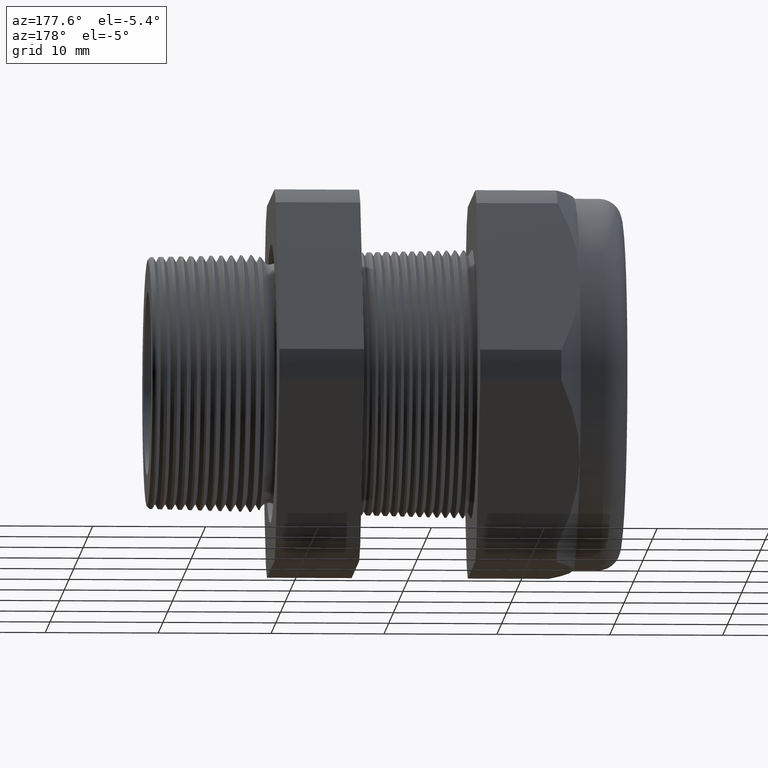
[diagram: clean part render]
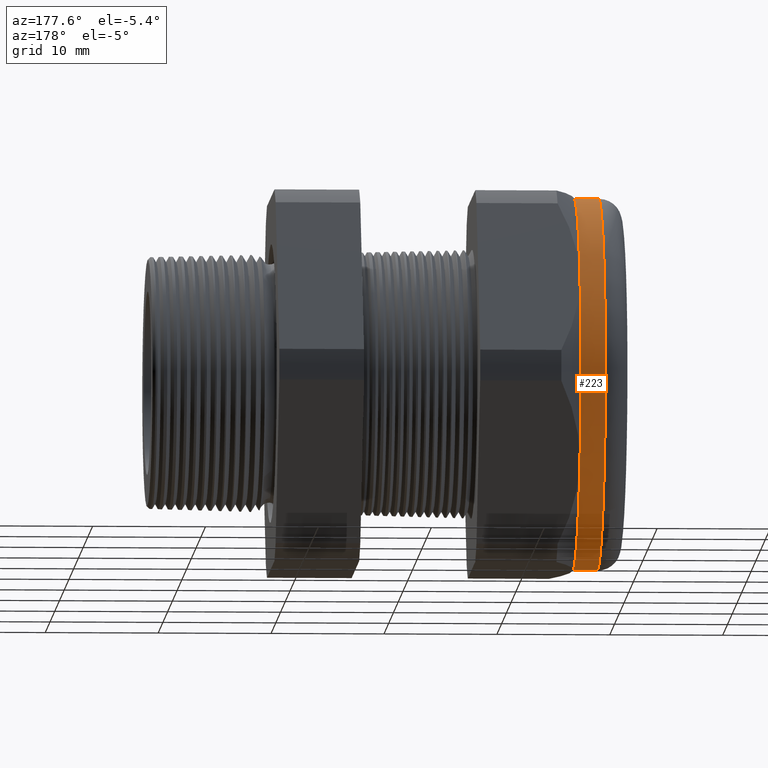
[diagram: same view with one face highlighted and labeled with its STEP entity id]
A machine part, auxiliary view. The second image highlights one B-rep face of the part: STEP entity #223.
In plain terms, the highlighted cylindrical surface (partial cylindrical patch) has radius 16.51 mm, axis along (1, 0, 0).
Its self-contained STEP definition (entity closure, byte-faithful):
#55 = VERTEX_POINT ( 'NONE', #2677 ) ;
#58 = VERTEX_POINT ( 'NONE', #2671 ) ;
#67 = EDGE_CURVE ( 'NONE', #55, #58, #2720, .T. ) ;
#221 = ORIENTED_EDGE ( 'NONE', *, *, #67, .T. ) ;
#222 = EDGE_LOOP ( 'NONE', ( #221, #5374, #5372, #5123, #5094, #5364 ) ) ;
#223 = ADVANCED_FACE ( 'NONE', ( #2988 ), #2987, .T. ) ;
#1477 = DIRECTION ( 'NONE',  ( 0.0000000000000000000, 0.0000000000000000000, -1.000000000000000000 ) ) ;
#1478 = DIRECTION ( 'NONE',  ( 1.000000000000000000, 0.0000000000000000000, 0.0000000000000000000 ) ) ;
#1479 = AXIS2_PLACEMENT_3D ( 'NONE', #1486, #1478, #1477 ) ;
#1480 = CIRCLE ( 'NONE', #1479, 0.6499999999999999100 ) ;
#1486 = CARTESIAN_POINT ( 'NONE',  ( -1.364645669291338200, 0.0000000000000000000, 0.0000000000000000000 ) ) ;
#1525 = CARTESIAN_POINT ( 'NONE',  ( -1.364645669291338500, 0.0000000000000000000, -0.6500000000000001300 ) ) ;
#1526 = DIRECTION ( 'NONE',  ( 1.000000000000000000, 0.0000000000000000000, 0.0000000000000000000 ) ) ;
#1527 = VECTOR ( 'NONE', #1526, 39.37007874015748100 ) ;
#1528 = CARTESIAN_POINT ( 'NONE',  ( 0.0000000000000000000, 7.960204194457794200E-017, 0.6499999999999999100 ) ) ;
#1529 = LINE ( 'NONE', #1528, #1527 ) ;
#1569 = CARTESIAN_POINT ( 'NONE',  ( -1.364645669291338500, 0.0000000000000000000, 0.6499999999999999100 ) ) ;
#1859 = DIRECTION ( 'NONE',  ( 1.000000000000000000, 0.0000000000000000000, 0.0000000000000000000 ) ) ;
#1860 = VECTOR ( 'NONE', #1859, 39.37007874015748100 ) ;
#1861 = CARTESIAN_POINT ( 'NONE',  ( 0.0000000000000000000, 0.0000000000000000000, -0.6499999999999999100 ) ) ;
#1865 = LINE ( 'NONE', #1861, #1860 ) ;
#2128 = DIRECTION ( 'NONE',  ( 0.0000000000000000000, 0.0000000000000000000, -1.000000000000000000 ) ) ;
#2129 = DIRECTION ( 'NONE',  ( 1.000000000000000000, 0.0000000000000000000, 0.0000000000000000000 ) ) ;
#2130 = CARTESIAN_POINT ( 'NONE',  ( -1.364645669291338200, 0.0000000000000000000, 0.0000000000000000000 ) ) ;
#2131 = AXIS2_PLACEMENT_3D ( 'NONE', #2130, #2129, #2128 ) ;
#2132 = CIRCLE ( 'NONE', #2131, 0.6499999999999999100 ) ;
#2133 = CARTESIAN_POINT ( 'NONE',  ( -1.364645669291338500, 0.5629165124598853900, -0.3249999999999999000 ) ) ;
#2134 = CARTESIAN_POINT ( 'NONE',  ( -1.364645669291338500, 0.5629165124598856100, 0.3250000000000002300 ) ) ;
#2135 = DIRECTION ( 'NONE',  ( 0.0000000000000000000, 0.0000000000000000000, -1.000000000000000000 ) ) ;
#2136 = DIRECTION ( 'NONE',  ( 1.000000000000000000, 0.0000000000000000000, 0.0000000000000000000 ) ) ;
#2137 = CARTESIAN_POINT ( 'NONE',  ( -1.364645669291338200, 0.0000000000000000000, 0.0000000000000000000 ) ) ;
#2138 = AXIS2_PLACEMENT_3D ( 'NONE', #2137, #2136, #2135 ) ;
#2139 = CIRCLE ( 'NONE', #2138, 0.6499999999999999100 ) ;
#2671 = CARTESIAN_POINT ( 'NONE',  ( -1.449999999999999700, 7.960204194457794200E-017, 0.6499999999999999100 ) ) ;
#2677 = CARTESIAN_POINT ( 'NONE',  ( -1.449999999999999700, 0.0000000000000000000, -0.6499999999999999100 ) ) ;
#2716 = DIRECTION ( 'NONE',  ( 0.0000000000000000000, 0.0000000000000000000, 1.000000000000000000 ) ) ;
#2717 = DIRECTION ( 'NONE',  ( 1.000000000000000000, 0.0000000000000000000, 0.0000000000000000000 ) ) ;
#2718 = CARTESIAN_POINT ( 'NONE',  ( -1.449999999999999700, 0.0000000000000000000, 0.0000000000000000000 ) ) ;
#2719 = AXIS2_PLACEMENT_3D ( 'NONE', #2718, #2717, #2716 ) ;
#2720 = CIRCLE ( 'NONE', #2719, 0.6499999999999999100 ) ;
#2987 = CYLINDRICAL_SURFACE ( 'NONE', #3048, 0.6499999999999999100 ) ;
#2988 = FACE_OUTER_BOUND ( 'NONE', #222, .T. ) ;
#3045 = DIRECTION ( 'NONE',  ( 0.0000000000000000000, 0.0000000000000000000, -1.000000000000000000 ) ) ;
#3046 = DIRECTION ( 'NONE',  ( 1.000000000000000000, 0.0000000000000000000, 0.0000000000000000000 ) ) ;
#3047 = CARTESIAN_POINT ( 'NONE',  ( 0.0000000000000000000, 0.0000000000000000000, 0.0000000000000000000 ) ) ;
#3048 = AXIS2_PLACEMENT_3D ( 'NONE', #3047, #3046, #3045 ) ;
#5094 = ORIENTED_EDGE ( 'NONE', *, *, #5103, .F. ) ;
#5103 = EDGE_CURVE ( 'NONE', #5111, #5486, #1480, .T. ) ;
#5108 = EDGE_CURVE ( 'NONE', #58, #5127, #1529, .T. ) ;
#5111 = VERTEX_POINT ( 'NONE', #1525 ) ;
#5123 = ORIENTED_EDGE ( 'NONE', *, *, #5487, .F. ) ;
#5127 = VERTEX_POINT ( 'NONE', #1569 ) ;
#5349 = EDGE_CURVE ( 'NONE', #55, #5111, #1865, .T. ) ;
#5364 = ORIENTED_EDGE ( 'NONE', *, *, #5349, .F. ) ;
#5372 = ORIENTED_EDGE ( 'NONE', *, *, #5484, .F. ) ;
#5374 = ORIENTED_EDGE ( 'NONE', *, *, #5108, .T. ) ;
#5484 = EDGE_CURVE ( 'NONE', #5485, #5127, #2139, .T. ) ;
#5485 = VERTEX_POINT ( 'NONE', #2134 ) ;
#5486 = VERTEX_POINT ( 'NONE', #2133 ) ;
#5487 = EDGE_CURVE ( 'NONE', #5486, #5485, #2132, .T. ) ;